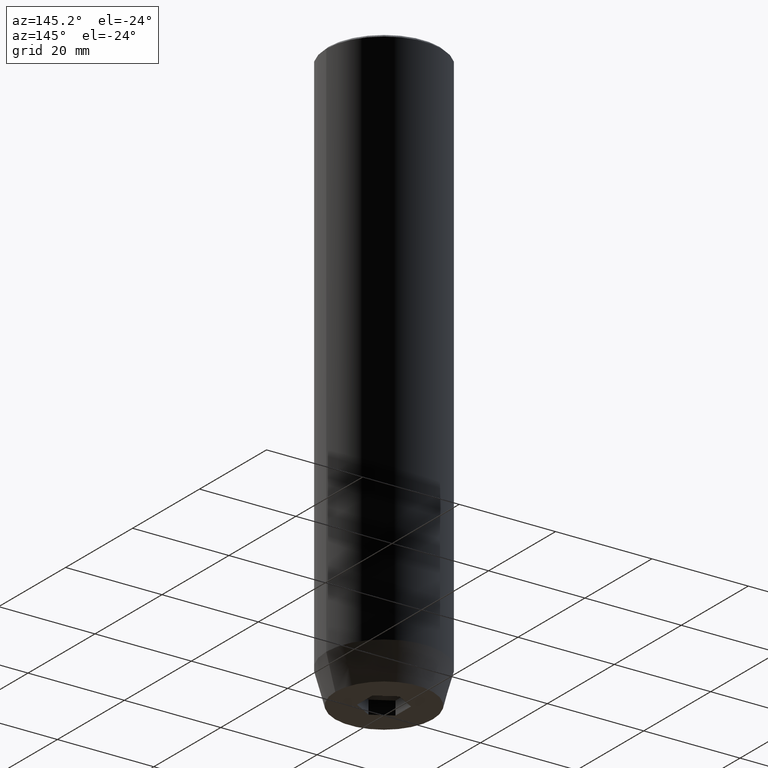
[diagram: clean part render]
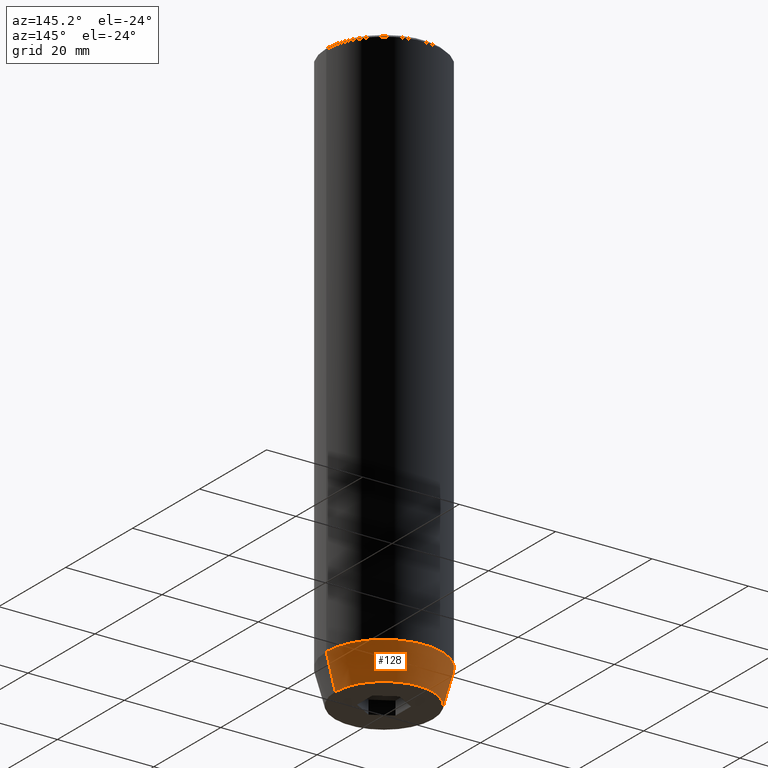
[diagram: same view with one face highlighted and labeled with its STEP entity id]
A machine part, auxiliary view. The second image highlights one B-rep face of the part: STEP entity #128.
In plain terms, the highlighted conical surface has half-angle 15 deg.
Its self-contained STEP definition (entity closure, byte-faithful):
#5 = AXIS2_PLACEMENT_3D ( 'NONE', #584, #134, #92 ) ;
#10 = VECTOR ( 'NONE', #221, 1000.000000000000000 ) ;
#12 = ORIENTED_EDGE ( 'NONE', *, *, #322, .F. ) ;
#33 = ORIENTED_EDGE ( 'NONE', *, *, #444, .F. ) ;
#46 = VECTOR ( 'NONE', #423, 1000.000000000000000 ) ;
#59 = CARTESIAN_POINT ( 'NONE',  ( 12.00000000000000000, 0.000000000000000000, -112.9999999999999858 ) ) ;
#92 = DIRECTION ( 'NONE',  ( 1.000000000000000000, 0.000000000000000000, 0.000000000000000000 ) ) ;
#110 = AXIS2_PLACEMENT_3D ( 'NONE', #281, #191, #505 ) ;
#111 = AXIS2_PLACEMENT_3D ( 'NONE', #313, #126, #489 ) ;
#120 = EDGE_CURVE ( 'NONE', #187, #312, #145, .T. ) ;
#126 = DIRECTION ( 'NONE',  ( -0.000000000000000000, -0.000000000000000000, 1.000000000000000000 ) ) ;
#128 = ADVANCED_FACE ( 'NONE', ( #237 ), #250, .T. ) ;
#134 = DIRECTION ( 'NONE',  ( -0.000000000000000000, -0.000000000000000000, 1.000000000000000000 ) ) ;
#145 = CIRCLE ( 'NONE', #5, 10.12435565298213547 ) ;
#177 = VERTEX_POINT ( 'NONE', #422 ) ;
#187 = VERTEX_POINT ( 'NONE', #382 ) ;
#191 = DIRECTION ( 'NONE',  ( -0.000000000000000000, -0.000000000000000000, 1.000000000000000000 ) ) ;
#221 = DIRECTION ( 'NONE',  ( -0.2588190451025213501, 3.169619151431772337E-17, 0.9659258262890680902 ) ) ;
#236 = LINE ( 'NONE', #539, #10 ) ;
#237 = FACE_OUTER_BOUND ( 'NONE', #337, .T. ) ;
#250 = CONICAL_SURFACE ( 'NONE', #110, 12.00000000000000000, 0.2617993877991500740 ) ;
#281 = CARTESIAN_POINT ( 'NONE',  ( 0.000000000000000000, 0.000000000000000000, -112.9999999999999858 ) ) ;
#293 = CARTESIAN_POINT ( 'NONE',  ( -10.12435565298213547, 1.354726066681111050E-15, -120.0000000000000000 ) ) ;
#303 = CARTESIAN_POINT ( 'NONE',  ( 12.00000000000000000, 0.000000000000000000, -112.9999999999999858 ) ) ;
#304 = ORIENTED_EDGE ( 'NONE', *, *, #120, .T. ) ;
#312 = VERTEX_POINT ( 'NONE', #293 ) ;
#313 = CARTESIAN_POINT ( 'NONE',  ( 0.000000000000000000, 0.000000000000000000, -112.9999999999999858 ) ) ;
#316 = ORIENTED_EDGE ( 'NONE', *, *, #491, .T. ) ;
#322 = EDGE_CURVE ( 'NONE', #187, #386, #511, .T. ) ;
#337 = EDGE_LOOP ( 'NONE', ( #304, #316, #33, #12 ) ) ;
#374 = CIRCLE ( 'NONE', #111, 12.00000000000000000 ) ;
#382 = CARTESIAN_POINT ( 'NONE',  ( 10.12435565298213547, 0.000000000000000000, -120.0000000000000000 ) ) ;
#386 = VERTEX_POINT ( 'NONE', #303 ) ;
#422 = CARTESIAN_POINT ( 'NONE',  ( -12.00000000000000000, 1.469576158976823947E-15, -112.9999999999999858 ) ) ;
#423 = DIRECTION ( 'NONE',  ( 0.2588190451025213501, 0.000000000000000000, 0.9659258262890680902 ) ) ;
#444 = EDGE_CURVE ( 'NONE', #386, #177, #374, .T. ) ;
#489 = DIRECTION ( 'NONE',  ( 1.000000000000000000, 0.000000000000000000, 0.000000000000000000 ) ) ;
#491 = EDGE_CURVE ( 'NONE', #312, #177, #236, .T. ) ;
#505 = DIRECTION ( 'NONE',  ( 1.000000000000000000, 0.000000000000000000, 0.000000000000000000 ) ) ;
#511 = LINE ( 'NONE', #59, #46 ) ;
#539 = CARTESIAN_POINT ( 'NONE',  ( -12.00000000000000000, 1.469576158976823947E-15, -112.9999999999999858 ) ) ;
#584 = CARTESIAN_POINT ( 'NONE',  ( 0.000000000000000000, 0.000000000000000000, -120.0000000000000000 ) ) ;